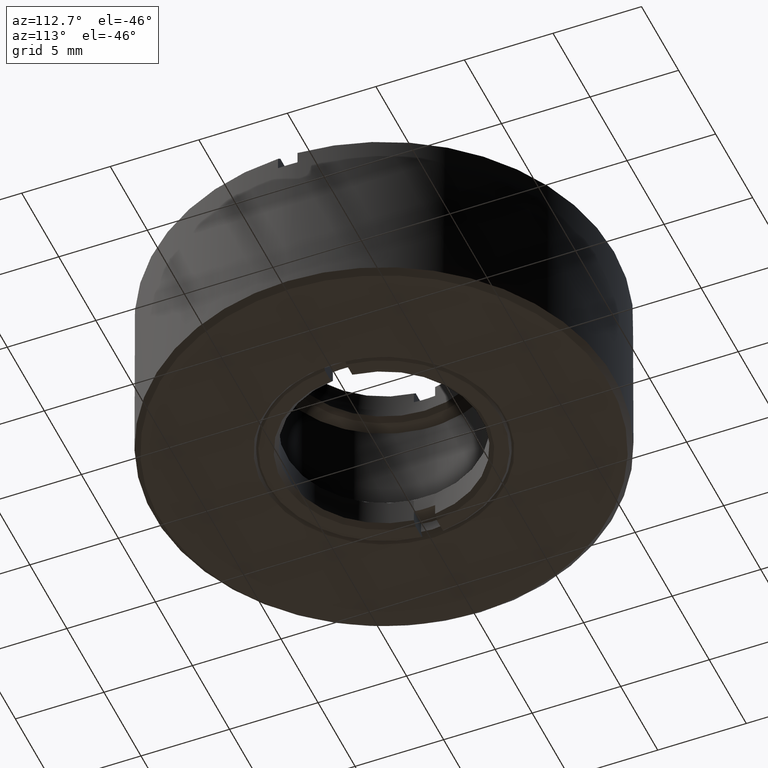
[diagram: clean part render]
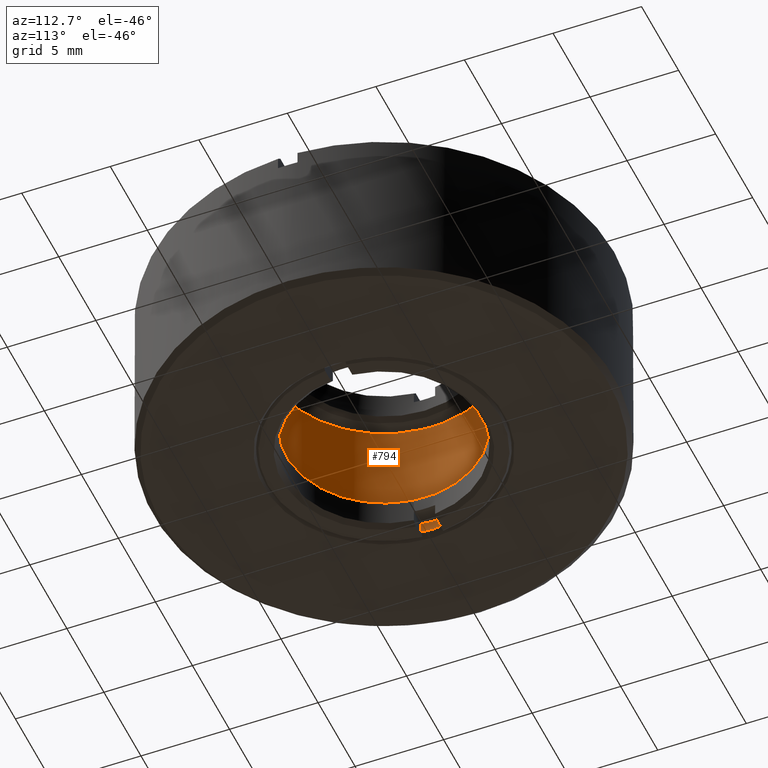
[diagram: same view with one face highlighted and labeled with its STEP entity id]
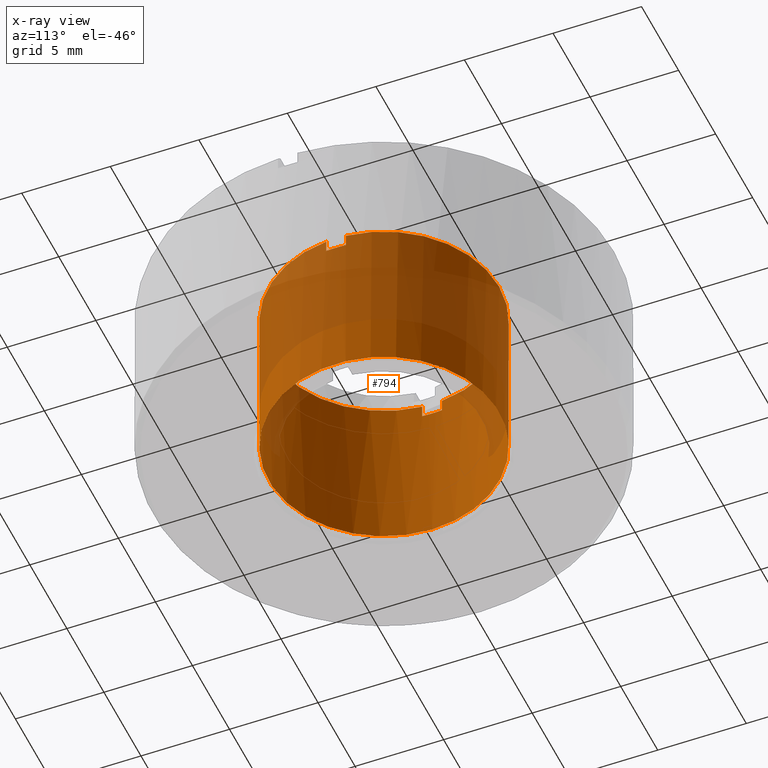
[diagram: x-ray of the same camera — body ghosted, the highlighted face saturated]
A machine part, auxiliary view. The second image highlights one B-rep face of the part: STEP entity #794.
The next image is the same camera in x-ray: the body ghosted, the highlighted face saturated — about 41% of this face is hidden behind the body in this view.
In plain terms, the highlighted cylindrical surface (bore or boss wall) has radius 6.5 mm, axis along (-0, -0, 1).
Its self-contained STEP definition (entity closure, byte-faithful):
#6 = CYLINDRICAL_SURFACE ( 'NONE', #640, 6.500000000000001776 ) ;
#12 = EDGE_CURVE ( 'NONE', #824, #824, #116, .T. ) ;
#110 = EDGE_CURVE ( 'NONE', #726, #525, #357, .T. ) ;
#114 = VERTEX_POINT ( 'NONE', #444 ) ;
#116 = CIRCLE ( 'NONE', #1435, 6.499999999959982233 ) ;
#144 = EDGE_CURVE ( 'NONE', #1272, #1391, #1172, .T. ) ;
#180 = LINE ( 'NONE', #673, #1063 ) ;
#213 = CARTESIAN_POINT ( 'NONE',  ( -6.499999999959982233, 0.000000000000000000, -4.700000000070758688 ) ) ;
#216 = EDGE_LOOP ( 'NONE', ( #839 ) ) ;
#298 = LINE ( 'NONE', #675, #1239 ) ;
#310 = DIRECTION ( 'NONE',  ( -0.000000000000000000, 0.000000000000000000, -1.000000000000000000 ) ) ;
#311 = DIRECTION ( 'NONE',  ( -0.000000000000000000, 0.000000000000000000, 1.000000000000000000 ) ) ;
#357 = CIRCLE ( 'NONE', #689, 6.500000000016824764 ) ;
#386 = CARTESIAN_POINT ( 'NONE',  ( 0.000000000000000000, 0.000000000000000000, -5.000000000000000000 ) ) ;
#409 = FACE_OUTER_BOUND ( 'NONE', #703, .T. ) ;
#416 = DIRECTION ( 'NONE',  ( -0.000000000000000000, -0.000000000000000000, 1.000000000000000000 ) ) ;
#444 = CARTESIAN_POINT ( 'NONE',  ( -6.476688968909964039, -0.5500000000000000444, 4.000000000000000000 ) ) ;
#497 = ORIENTED_EDGE ( 'NONE', *, *, #1523, .T. ) ;
#525 = VERTEX_POINT ( 'NONE', #1409 ) ;
#545 = DIRECTION ( 'NONE',  ( 0.000000000000000000, 0.000000000000000000, 1.000000000000000000 ) ) ;
#584 = EDGE_CURVE ( 'NONE', #828, #1272, #939, .T. ) ;
#605 = CIRCLE ( 'NONE', #1088, 6.500000000000001776 ) ;
#608 = VERTEX_POINT ( 'NONE', #1202 ) ;
#640 = AXIS2_PLACEMENT_3D ( 'NONE', #386, #416, #1111 ) ;
#673 = CARTESIAN_POINT ( 'NONE',  ( -6.476688968909964039, 0.5500000000000000444, 4.000000000000000000 ) ) ;
#674 = AXIS2_PLACEMENT_3D ( 'NONE', #1178, #1549, #1536 ) ;
#675 = CARTESIAN_POINT ( 'NONE',  ( -6.476688968909964039, -0.5500000000000000444, 4.000000000000000000 ) ) ;
#689 = AXIS2_PLACEMENT_3D ( 'NONE', #1524, #545, #1509 ) ;
#703 = EDGE_LOOP ( 'NONE', ( #1179, #1334, #755, #1232, #497, #1354, #944, #872 ) ) ;
#726 = VERTEX_POINT ( 'NONE', #1583 ) ;
#755 = ORIENTED_EDGE ( 'NONE', *, *, #584, .T. ) ;
#756 = DIRECTION ( 'NONE',  ( -0.000000000000000000, -0.000000000000000000, -1.000000000000000000 ) ) ;
#775 = CARTESIAN_POINT ( 'NONE',  ( 0.000000000000000000, 0.000000000000000000, 4.700000000013915269 ) ) ;
#791 = CARTESIAN_POINT ( 'NONE',  ( 0.000000000000000000, 0.000000000000000000, 4.000000000000000888 ) ) ;
#794 = ADVANCED_FACE ( 'NONE', ( #989, #409 ), #6, .F. ) ;
#821 = CARTESIAN_POINT ( 'NONE',  ( 6.476688968909964039, 0.5500000000000000444, 4.000000000000000000 ) ) ;
#824 = VERTEX_POINT ( 'NONE', #213 ) ;
#826 = CARTESIAN_POINT ( 'NONE',  ( 6.476688968909964039, -0.5500000000000000444, 4.000000000000000000 ) ) ;
#828 = VERTEX_POINT ( 'NONE', #1004 ) ;
#839 = ORIENTED_EDGE ( 'NONE', *, *, #12, .T. ) ;
#872 = ORIENTED_EDGE ( 'NONE', *, *, #110, .T. ) ;
#907 = DIRECTION ( 'NONE',  ( 0.000000000000000000, 0.000000000000000000, -1.000000000000000000 ) ) ;
#922 = CARTESIAN_POINT ( 'NONE',  ( -6.476688968918407063, 0.5500000000000000444, 4.700000000033924152 ) ) ;
#939 = LINE ( 'NONE', #821, #1350 ) ;
#944 = ORIENTED_EDGE ( 'NONE', *, *, #947, .T. ) ;
#947 = EDGE_CURVE ( 'NONE', #114, #726, #298, .T. ) ;
#952 = VECTOR ( 'NONE', #1563, 1000.000000000000000 ) ;
#989 = FACE_OUTER_BOUND ( 'NONE', #216, .T. ) ;
#1001 = EDGE_CURVE ( 'NONE', #828, #608, #1033, .T. ) ;
#1004 = CARTESIAN_POINT ( 'NONE',  ( 6.476688968909964039, 0.5500000000000000444, 4.000000000000000000 ) ) ;
#1033 = CIRCLE ( 'NONE', #674, 6.500000000000001776 ) ;
#1063 = VECTOR ( 'NONE', #310, 1000.000000000000000 ) ;
#1071 = LINE ( 'NONE', #826, #952 ) ;
#1088 = AXIS2_PLACEMENT_3D ( 'NONE', #791, #907, #1395 ) ;
#1095 = AXIS2_PLACEMENT_3D ( 'NONE', #775, #1412, #1419 ) ;
#1111 = DIRECTION ( 'NONE',  ( 1.000000000000000000, 0.000000000000000000, 0.000000000000000000 ) ) ;
#1128 = EDGE_CURVE ( 'NONE', #525, #608, #1071, .T. ) ;
#1172 = CIRCLE ( 'NONE', #1095, 6.500000000016824764 ) ;
#1178 = CARTESIAN_POINT ( 'NONE',  ( 0.000000000000000000, 0.000000000000000000, 4.000000000000000888 ) ) ;
#1179 = ORIENTED_EDGE ( 'NONE', *, *, #1128, .T. ) ;
#1202 = CARTESIAN_POINT ( 'NONE',  ( 6.476688968909964039, -0.5500000000000000444, 4.000000000000000000 ) ) ;
#1232 = ORIENTED_EDGE ( 'NONE', *, *, #144, .T. ) ;
#1235 = CARTESIAN_POINT ( 'NONE',  ( 0.000000000000000000, 0.000000000000000000, -4.700000000070758688 ) ) ;
#1239 = VECTOR ( 'NONE', #311, 1000.000000000000000 ) ;
#1272 = VERTEX_POINT ( 'NONE', #1380 ) ;
#1310 = DIRECTION ( 'NONE',  ( 0.000000000000000000, -0.000000000000000000, 1.000000000000000000 ) ) ;
#1334 = ORIENTED_EDGE ( 'NONE', *, *, #1001, .F. ) ;
#1350 = VECTOR ( 'NONE', #1310, 1000.000000000000000 ) ;
#1354 = ORIENTED_EDGE ( 'NONE', *, *, #1506, .F. ) ;
#1380 = CARTESIAN_POINT ( 'NONE',  ( 6.476688968909964039, 0.5500000000000000444, 4.700000000033924152 ) ) ;
#1391 = VERTEX_POINT ( 'NONE', #922 ) ;
#1395 = DIRECTION ( 'NONE',  ( 1.000000000000000000, 8.881784197001252323E-15, 0.000000000000000000 ) ) ;
#1409 = CARTESIAN_POINT ( 'NONE',  ( 6.476688968918407063, -0.5500000000000000444, 4.700000000033924152 ) ) ;
#1412 = DIRECTION ( 'NONE',  ( 0.000000000000000000, 0.000000000000000000, 1.000000000000000000 ) ) ;
#1419 = DIRECTION ( 'NONE',  ( 1.000000000000000000, 0.000000000000000000, 0.000000000000000000 ) ) ;
#1435 = AXIS2_PLACEMENT_3D ( 'NONE', #1235, #756, #1505 ) ;
#1489 = VERTEX_POINT ( 'NONE', #1516 ) ;
#1505 = DIRECTION ( 'NONE',  ( -1.000000000000000000, 0.000000000000000000, 0.000000000000000000 ) ) ;
#1506 = EDGE_CURVE ( 'NONE', #114, #1489, #605, .T. ) ;
#1509 = DIRECTION ( 'NONE',  ( 1.000000000000000000, 0.000000000000000000, 0.000000000000000000 ) ) ;
#1516 = CARTESIAN_POINT ( 'NONE',  ( -6.476688968909964039, 0.5500000000000000444, 4.000000000000000888 ) ) ;
#1523 = EDGE_CURVE ( 'NONE', #1391, #1489, #180, .T. ) ;
#1524 = CARTESIAN_POINT ( 'NONE',  ( 0.000000000000000000, 0.000000000000000000, 4.700000000013915269 ) ) ;
#1536 = DIRECTION ( 'NONE',  ( 1.000000000000000000, 0.000000000000000000, 0.000000000000000000 ) ) ;
#1549 = DIRECTION ( 'NONE',  ( 0.000000000000000000, 0.000000000000000000, -1.000000000000000000 ) ) ;
#1563 = DIRECTION ( 'NONE',  ( 0.000000000000000000, -0.000000000000000000, -1.000000000000000000 ) ) ;
#1583 = CARTESIAN_POINT ( 'NONE',  ( -6.476688968909964039, -0.5500000000000000444, 4.700000000033924152 ) ) ;